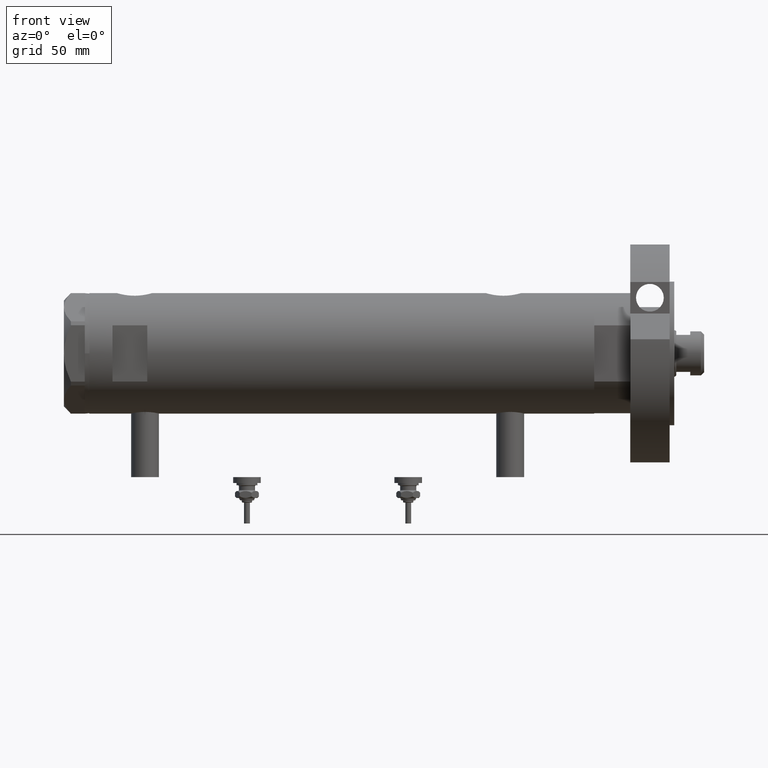
[diagram: clean part render]
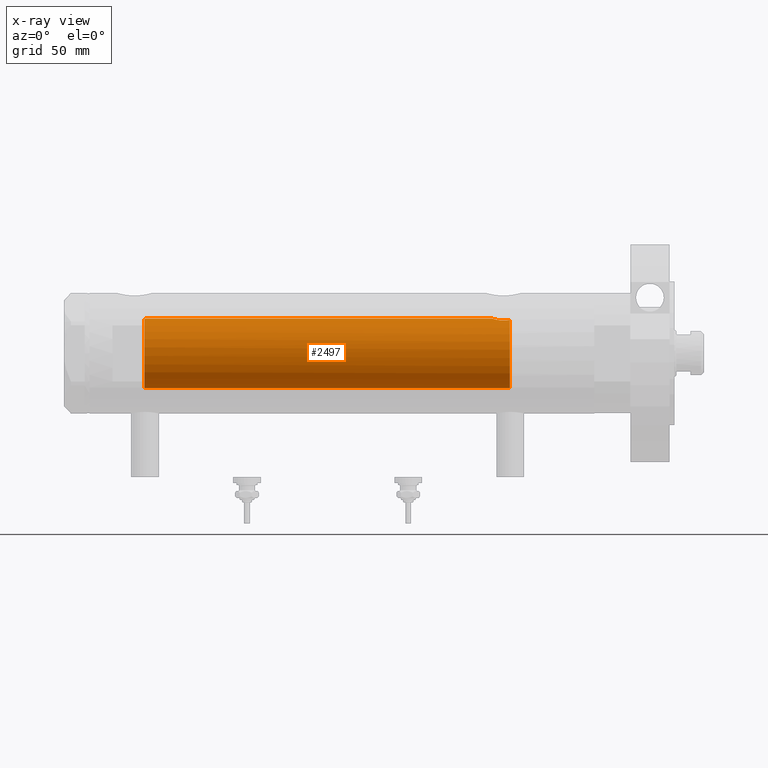
[diagram: x-ray — body ghosted, one internal face saturated and labeled with its STEP entity id]
A machine part, front view, then the same camera in x-ray: the body is ghosted and one INTERNAL B-rep face — a face not visible from any outside direction — is saturated and labeled: STEP entity #2497.
In plain terms, the highlighted cylindrical surface (edge-blend (fillet) strip) has radius 15 mm, axis along (1, 0, -0).
Its self-contained STEP definition (entity closure, byte-faithful):
#47 = AXIS2_PLACEMENT_3D ( 'NONE', #5335, #7901, #7784 ) ;
#57 = CARTESIAN_POINT ( 'NONE',  ( 14.20926245015525957, -4.806160851464704287, -68.96377327795615031 ) ) ;
#116 = DIRECTION ( 'NONE',  ( -1.000000000000000000, 0.000000000000000000, 0.000000000000000000 ) ) ;
#135 = CARTESIAN_POINT ( 'NONE',  ( 15.00000000000000000, 0.000000000000000000, 84.58500000000000796 ) ) ;
#243 = CARTESIAN_POINT ( 'NONE',  ( 14.97537530859972321, -0.8874117095427768165, -64.96137464055831856 ) ) ;
#311 = VERTEX_POINT ( 'NONE', #2800 ) ;
#428 = LINE ( 'NONE', #2962, #4504 ) ;
#441 = DIRECTION ( 'NONE',  ( -0.000000000000000000, -0.000000000000000000, -1.000000000000000000 ) ) ;
#579 = CARTESIAN_POINT ( 'NONE',  ( 0.000000000000000000, 0.000000000000000000, 85.15000000000000568 ) ) ;
#611 = CARTESIAN_POINT ( 'NONE',  ( 14.42796883436190392, -4.108435602805834641, -67.10726922759032220 ) ) ;
#689 = AXIS2_PLACEMENT_3D ( 'NONE', #579, #6579, #5416 ) ;
#816 = ORIENTED_EDGE ( 'NONE', *, *, #6942, .F. ) ;
#821 = CARTESIAN_POINT ( 'NONE',  ( 15.00000000000000000, 5.959273473684245944E-16, -64.88500000000000512 ) ) ;
#1082 = B_SPLINE_CURVE_WITH_KNOTS ( 'NONE', 3,
 ( #6014, #4398, #1938, #1818, #7374, #3667, #4313, #1216, #1858, #6130, #2548, #5609, #57, #3151, #6771, #4879, #1255, #611, #1179, #2504, #7332, #3708, #7458, #4961, #5761, #6813, #243, #4920, #7605, #4356 ),
 .UNSPECIFIED., .F., .F.,
 ( 4, 2, 2, 2, 2, 2, 2, 2, 2, 2, 2, 2, 2, 2, 4 ),
 ( 0.004672505804584295430, 0.005337629501999315365, 0.006002753199414335300, 0.006667876896829355235, 0.007333000594244375170, 0.007998124291659395105, 0.008663247989074415040, 0.009328371686489433240, 0.009993495383904454910, 0.01132374277873445662, 0.01265399017356445832, 0.01331911387097945050, 0.01398423756839444268, 0.01464936126580943312, 0.01531448496322442530 ),
 .UNSPECIFIED. ) ;
#1106 = CARTESIAN_POINT ( 'NONE',  ( 14.98404828787190901, -0.7909490205761859904, 84.63356230794190083 ) ) ;
#1179 = CARTESIAN_POINT ( 'NONE',  ( 14.49994286062941384, -3.853373987417223034, -66.74743896782911179 ) ) ;
#1216 = CARTESIAN_POINT ( 'NONE',  ( 14.20819413761016037, -4.809312895991457282, -70.51713251522167525 ) ) ;
#1255 = CARTESIAN_POINT ( 'NONE',  ( 14.33594561531104006, -4.414979644548150617, -67.69453393419244946 ) ) ;
#1323 = CARTESIAN_POINT ( 'NONE',  ( -15.00000000000000000, 0.000000000000000000, -72.54999999999999716 ) ) ;
#1401 = ORIENTED_EDGE ( 'NONE', *, *, #5147, .F. ) ;
#1491 = ORIENTED_EDGE ( 'NONE', *, *, #7517, .T. ) ;
#1622 = EDGE_CURVE ( 'NONE', #3240, #4490, #4949, .T. ) ;
#1818 = CARTESIAN_POINT ( 'NONE',  ( 14.33349657381506148, -4.422893686125038748, -71.78827841538880250 ) ) ;
#1858 = CARTESIAN_POINT ( 'NONE',  ( 14.19797987272029793, -4.839174951492910992, -70.29741451501413962 ) ) ;
#1864 = CARTESIAN_POINT ( 'NONE',  ( 15.00000000000000711, -0.3999014018875933218, 84.58500000000002217 ) ) ;
#1938 = CARTESIAN_POINT ( 'NONE',  ( 14.39424372609267877, -4.221002267729139668, -72.17893131093291004 ) ) ;
#2057 = ORIENTED_EDGE ( 'NONE', *, *, #4529, .T. ) ;
#2426 = CARTESIAN_POINT ( 'NONE',  ( 14.82638779339053947, -2.275571356824482638, 85.15000000000000568 ) ) ;
#2497 = ADVANCED_FACE ( 'NONE', ( #6041 ), #5964, .F. ) ;
#2504 = CARTESIAN_POINT ( 'NONE',  ( 14.64727859494137263, -3.248701865452405801, -66.10174013696655493 ) ) ;
#2548 = CARTESIAN_POINT ( 'NONE',  ( 14.18786347641750112, -4.868757996482119488, -69.63322300400297138 ) ) ;
#2800 = CARTESIAN_POINT ( 'NONE',  ( -15.00000000000000000, 0.000000000000000000, 85.15000000000000568 ) ) ;
#2962 = CARTESIAN_POINT ( 'NONE',  ( 15.00000000000000000, 1.836970198721029589E-15, 108.9499999999999886 ) ) ;
#3151 = CARTESIAN_POINT ( 'NONE',  ( 14.23984499268011561, -4.714778477509576682, -68.53008258614765680 ) ) ;
#3240 = VERTEX_POINT ( 'NONE', #135 ) ;
#3346 = ORIENTED_EDGE ( 'NONE', *, *, #1622, .F. ) ;
#3667 = CARTESIAN_POINT ( 'NONE',  ( 14.25856516724843637, -4.658255869285517825, -71.17044016644935311 ) ) ;
#3708 = CARTESIAN_POINT ( 'NONE',  ( 14.81710879718118079, -2.343063746046463613, -65.48067662538953471 ) ) ;
#3764 = VECTOR ( 'NONE', #6328, 1000.000000000000000 ) ;
#3792 = ORIENTED_EDGE ( 'NONE', *, *, #7570, .T. ) ;
#4313 = CARTESIAN_POINT ( 'NONE',  ( 14.23846660849503110, -4.718934182878724570, -70.95401121469809880 ) ) ;
#4356 = CARTESIAN_POINT ( 'NONE',  ( 15.00000000000000000, 5.959273473684245944E-16, -64.88500000000000512 ) ) ;
#4398 = CARTESIAN_POINT ( 'NONE',  ( 14.42775250319759728, -4.105775281508738495, -72.36911445102909113 ) ) ;
#4471 = LINE ( 'NONE', #5078, #3764 ) ;
#4490 = VERTEX_POINT ( 'NONE', #7753 ) ;
#4504 = VECTOR ( 'NONE', #5464, 1000.000000000000000 ) ;
#4529 = EDGE_CURVE ( 'NONE', #3240, #6479, #428, .T. ) ;
#4879 = CARTESIAN_POINT ( 'NONE',  ( 14.30772250772360366, -4.505024017690372418, -67.90010806953213773 ) ) ;
#4886 = CARTESIAN_POINT ( 'NONE',  ( 15.00000000000000000, 0.000000000000000000, 84.58500000000000796 ) ) ;
#4920 = CARTESIAN_POINT ( 'NONE',  ( 14.99508877558422881, -0.4434836953032569862, -64.90007684727665094 ) ) ;
#4949 = B_SPLINE_CURVE_WITH_KNOTS ( 'NONE', 3,
 ( #4886, #1864, #1106, #6137, #6021, #5457, #7863, #2426 ),
 .UNSPECIFIED., .F., .F.,
 ( 4, 2, 2, 4 ),
 ( 0.000000000000000000, 0.001182100180564269864, 0.001773150270846399592, 0.002364200361128529319 ),
 .UNSPECIFIED. ) ;
#4961 = CARTESIAN_POINT ( 'NONE',  ( 14.90017778876745247, -1.739641523727897710, -65.20130925695124802 ) ) ;
#4995 = AXIS2_PLACEMENT_3D ( 'NONE', #7435, #441, #116 ) ;
#5078 = CARTESIAN_POINT ( 'NONE',  ( -15.00000000000000000, 0.000000000000000000, 108.9499999999999886 ) ) ;
#5147 = EDGE_CURVE ( 'NONE', #7884, #6479, #1082, .T. ) ;
#5335 = CARTESIAN_POINT ( 'NONE',  ( 0.000000000000000000, 0.000000000000000000, -72.54999999999999716 ) ) ;
#5416 = DIRECTION ( 'NONE',  ( 1.000000000000000000, 0.000000000000000000, 0.000000000000000000 ) ) ;
#5441 = CIRCLE ( 'NONE', #689, 15.00000000000000000 ) ;
#5457 = CARTESIAN_POINT ( 'NONE',  ( 14.87720562886503828, -1.924385875533404233, 84.97741675737692901 ) ) ;
#5464 = DIRECTION ( 'NONE',  ( -0.000000000000000000, -0.000000000000000000, -1.000000000000000000 ) ) ;
#5609 = CARTESIAN_POINT ( 'NONE',  ( 14.19858338301463085, -4.837406781463694294, -69.18614104090498529 ) ) ;
#5627 = VERTEX_POINT ( 'NONE', #1323 ) ;
#5761 = CARTESIAN_POINT ( 'NONE',  ( 14.92307637240704032, -1.532123959568890692, -65.12726557582080034 ) ) ;
#5964 = CYLINDRICAL_SURFACE ( 'NONE', #4995, 15.00000000000000000 ) ;
#6014 = CARTESIAN_POINT ( 'NONE',  ( 14.46277203719950855, -3.978470183374511304, -72.54999999999999716 ) ) ;
#6021 = CARTESIAN_POINT ( 'NONE',  ( 14.92029983160078288, -1.555365312915180320, 84.83609703141412695 ) ) ;
#6041 = FACE_OUTER_BOUND ( 'NONE', #6434, .T. ) ;
#6130 = CARTESIAN_POINT ( 'NONE',  ( 14.18781489734108270, -4.868896704194244585, -69.85545969036061820 ) ) ;
#6137 = CARTESIAN_POINT ( 'NONE',  ( 14.93900636919600089, -1.364886281976675164, 84.77622504971311912 ) ) ;
#6328 = DIRECTION ( 'NONE',  ( -0.000000000000000000, -0.000000000000000000, -1.000000000000000000 ) ) ;
#6434 = EDGE_LOOP ( 'NONE', ( #3346, #2057, #1401, #3792, #816, #1491 ) ) ;
#6479 = VERTEX_POINT ( 'NONE', #821 ) ;
#6579 = DIRECTION ( 'NONE',  ( 0.000000000000000000, 0.000000000000000000, 1.000000000000000000 ) ) ;
#6771 = CARTESIAN_POINT ( 'NONE',  ( 14.25977760983849763, -4.654557688538883298, -68.31736805897654108 ) ) ;
#6813 = CARTESIAN_POINT ( 'NONE',  ( 14.96064712090283955, -1.106639041422192049, -65.00738179736373468 ) ) ;
#6893 = CARTESIAN_POINT ( 'NONE',  ( 14.46277203719950855, -3.978470183374511304, -72.54999999999999716 ) ) ;
#6942 = EDGE_CURVE ( 'NONE', #311, #5627, #4471, .T. ) ;
#7332 = CARTESIAN_POINT ( 'NONE',  ( 14.72015646623406049, -2.909233045280597896, -65.82572079632734585 ) ) ;
#7374 = CARTESIAN_POINT ( 'NONE',  ( 14.30602371879160728, -4.510400617436905790, -71.58665028800270136 ) ) ;
#7435 = CARTESIAN_POINT ( 'NONE',  ( 0.000000000000000000, 0.000000000000000000, 108.9499999999999886 ) ) ;
#7458 = CARTESIAN_POINT ( 'NONE',  ( 14.84733308118440398, -2.144376633039211999, -65.37751912952717248 ) ) ;
#7517 = EDGE_CURVE ( 'NONE', #311, #4490, #5441, .T. ) ;
#7570 = EDGE_CURVE ( 'NONE', #7884, #5627, #7625, .T. ) ;
#7605 = CARTESIAN_POINT ( 'NONE',  ( 15.00000000000000888, -0.2216692655473423146, -64.88500000000003354 ) ) ;
#7625 = CIRCLE ( 'NONE', #47, 15.00000000000000000 ) ;
#7753 = CARTESIAN_POINT ( 'NONE',  ( 14.82638779339053947, -2.275571356824482638, 85.15000000000000568 ) ) ;
#7784 = DIRECTION ( 'NONE',  ( -1.000000000000000000, 0.000000000000000000, 0.000000000000000000 ) ) ;
#7863 = CARTESIAN_POINT ( 'NONE',  ( 14.85289483991916981, -2.102865829523694163, 85.05860377881604961 ) ) ;
#7884 = VERTEX_POINT ( 'NONE', #6893 ) ;
#7901 = DIRECTION ( 'NONE',  ( 0.000000000000000000, 0.000000000000000000, -1.000000000000000000 ) ) ;